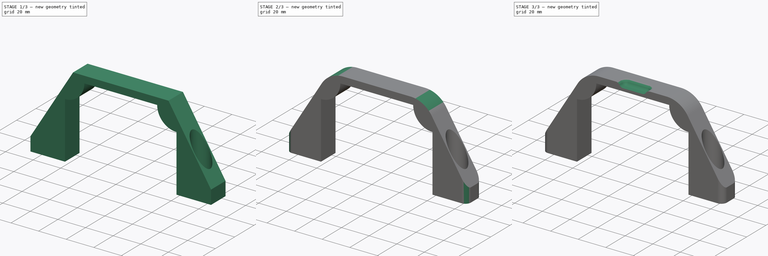
[diagram: build sequence overview — one tinted view per stage of 3, left to right]
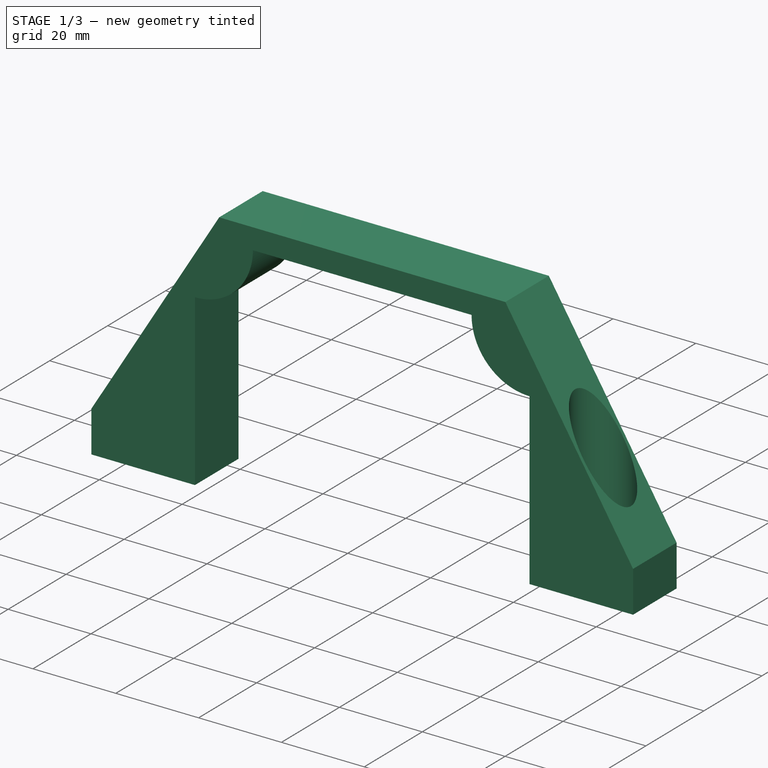
[diagram: stage 1 of 3 — iso view after this stage's code; geometry added in this stage tinted green]
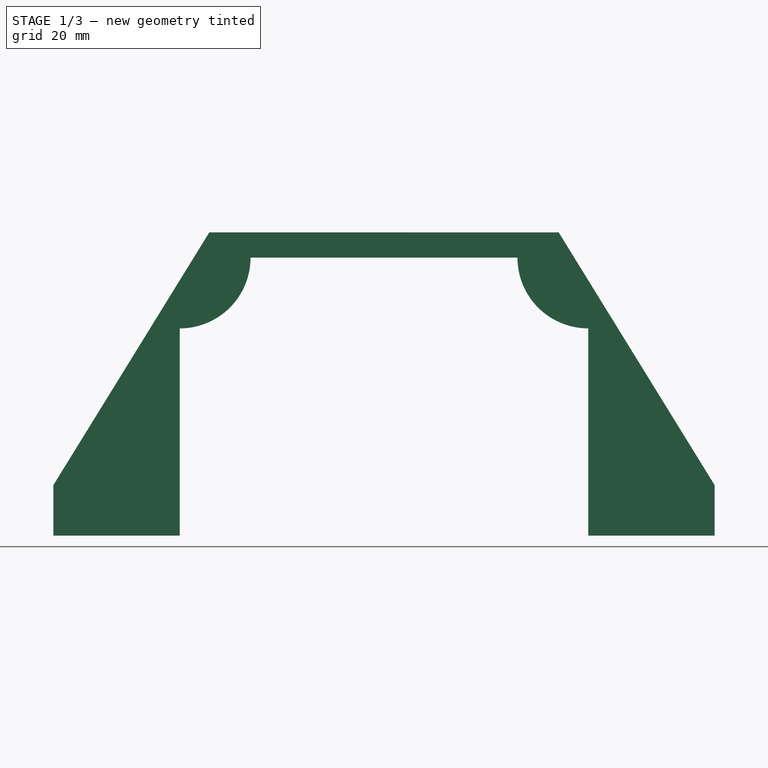
[diagram: stage 1 of 3 — front view after this stage's code; geometry added in this stage tinted green]
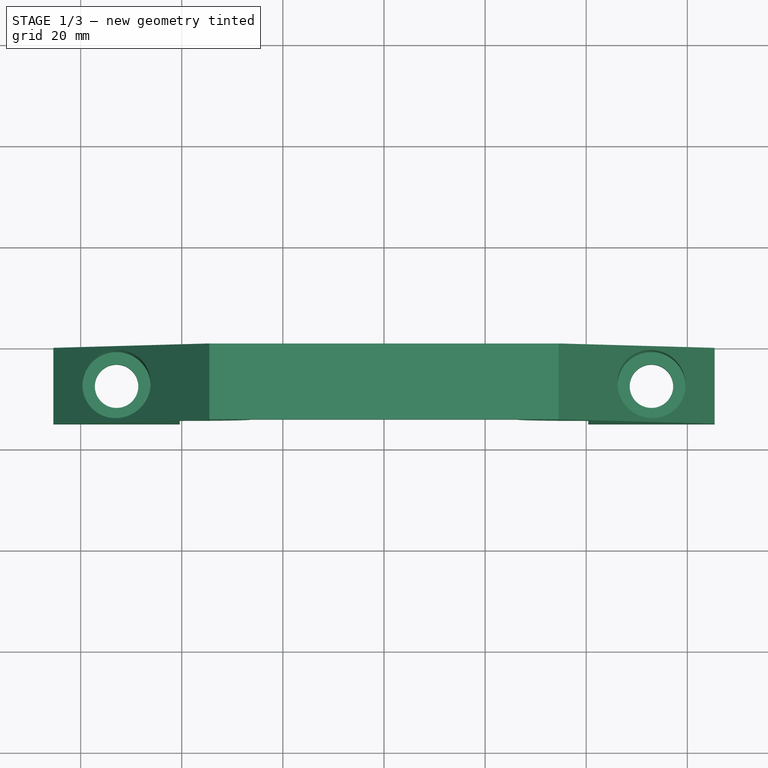
[diagram: stage 1 of 3 — top view after this stage's code; geometry added in this stage tinted green]
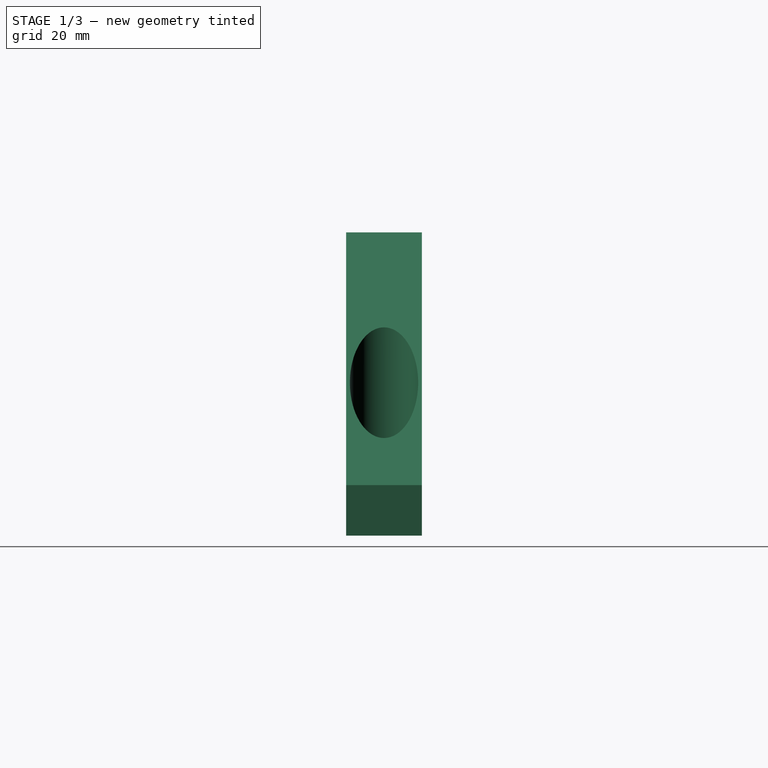
[diagram: stage 1 of 3 — right view after this stage's code; geometry added in this stage tinted green]
FCSTD DOCUMENT  (FreeCAD 1.0R39109 (Git))
Label: sway_motor_mount_top
License: All rights reserved
LicenseURL: https://en.wikipedia.org/wiki/All_rights_reserved
objects: Sketcher::SketchObject×4, PartDesign::Pocket×3, PartDesign::Fillet×3, PartDesign::Pad×1, PartDesign::Groove×1, PartDesign::Body×1
note: 33 computed .brp shape members not serialized (recipe doc carries the construction recipe); baked Part::Feature solids carry a one-line shape summary decoded from their .brp

FEATURE [Sketcher::SketchObject] Sketch
  ArcFitTolerance = 1e-06
  AttachmentSupport = -> [XZ_Plane]
  FullyConstrained = true
  MakeInternals = false
  MapMode = 5
  Placement = pos=(0,0,0) rot=(1,0,0;1.5708rad)
  sketch-geometry (31):
    g0: LineSegment [constr] StartX=-66.2 StartY=5 StartZ=0 EndX=-66.2 EndY=-5 EndZ=0
    g1: LineSegment [constr] StartX=-66.2 StartY=-5 StartZ=0 EndX=-40 EndY=-5 EndZ=0
    g2: LineSegment [constr] StartX=-40 StartY=-5 StartZ=0 EndX=-40 EndY=5 EndZ=0
    g3: LineSegment [constr] StartX=-40 StartY=5 StartZ=0 EndX=-66.2 EndY=5 EndZ=0
    g4: LineSegment [constr] StartX=40 StartY=5 StartZ=0 EndX=40 EndY=-5 EndZ=0
    g5: LineSegment [constr] StartX=40 StartY=-5 StartZ=0 EndX=66.2 EndY=-5 EndZ=0
    g6: LineSegment [constr] StartX=66.2 StartY=-5 StartZ=0 EndX=66.2 EndY=5 EndZ=0
    g7: LineSegment [constr] StartX=66.2 StartY=5 StartZ=0 EndX=40 EndY=5 EndZ=0
    g8: LineSegment [constr] StartX=-40 StartY=-5 StartZ=0 EndX=0 EndY=0 EndZ=0
    g9: LineSegment [constr] StartX=0 StartY=0 StartZ=0 EndX=40 EndY=-5 EndZ=0
    g10: LineSegment [constr] StartX=-40 StartY=60 StartZ=0 EndX=-40 EndY=-20 EndZ=0
    g11: LineSegment [constr] StartX=-40 StartY=-20 StartZ=0 EndX=40 EndY=-20 EndZ=0
    g12: LineSegment [constr] StartX=40 StartY=-20 StartZ=0 EndX=40 EndY=60 EndZ=0
    g13: LineSegment [constr] StartX=40 StartY=60 StartZ=0 EndX=-40 EndY=60 EndZ=0
    g14: ArcOfCircle [constr] CenterX=-40 CenterY=-20 CenterZ=0 NormalX=0 NormalY=0 NormalZ=1 AngleXU=0 Radius=14 StartAngle=0 EndAngle=1.5708
    g15: ArcOfCircle [constr] CenterX=-40 CenterY=60 CenterZ=0 NormalX=0 NormalY=0 NormalZ=1 AngleXU=0 Radius=14 StartAngle=4.71239 EndAngle=6.28319
    g16: ArcOfCircle [constr] CenterX=40 CenterY=-20 CenterZ=0 NormalX=0 NormalY=0 NormalZ=1 AngleXU=0 Radius=14 StartAngle=1.5708 EndAngle=3.14159
    g17: ArcOfCircle [constr] CenterX=40 CenterY=60 CenterZ=0 NormalX=0 NormalY=0 NormalZ=1 AngleXU=0 Radius=14 StartAngle=3.14159 EndAngle=4.71239
    g18: ArcOfCircle CenterX=-40.4 CenterY=60.4 CenterZ=0 NormalX=0 NormalY=0 NormalZ=1 AngleXU=0 Radius=14 StartAngle=4.71239 EndAngle=6.28319
    g19: ArcOfCircle CenterX=40.4 CenterY=60.4 CenterZ=0 NormalX=0 NormalY=0 NormalZ=1 AngleXU=0 Radius=14 StartAngle=3.14159 EndAngle=4.71239
    g20: LineSegment StartX=-40.4 StartY=5.4 StartZ=0 EndX=-65.4 EndY=5.4 EndZ=0
    g21: LineSegment StartX=-65.4 StartY=5.4 StartZ=0 EndX=-65.4 EndY=15.4 EndZ=0
    g22: LineSegment StartX=-65.4 StartY=15.4 StartZ=0 EndX=-34.5532 EndY=65.4 EndZ=0
    g23: LineSegment StartX=-34.5532 StartY=65.4 StartZ=0 EndX=34.5532 EndY=65.4 EndZ=0
    g24: LineSegment StartX=34.5532 StartY=65.4 StartZ=0 EndX=65.4 EndY=15.4 EndZ=0
    g25: LineSegment StartX=65.4 StartY=15.4 StartZ=0 EndX=65.4 EndY=5.4 EndZ=0
    g26: LineSegment StartX=65.4 StartY=5.4 StartZ=0 EndX=40.4 EndY=5.4 EndZ=0
    g27: LineSegment StartX=40.4 StartY=5.4 StartZ=0 EndX=40.4 EndY=46.4 EndZ=0
    g28: LineSegment StartX=-26.4 StartY=60.4 StartZ=0 EndX=26.4 EndY=60.4 EndZ=0
    g29: LineSegment StartX=-40.4 StartY=46.4 StartZ=0 EndX=-40.4 EndY=5.4 EndZ=0
    g30: LineSegment [constr] StartX=-44.6553 StartY=49.0253 StartZ=0 EndX=-40.4 EndY=46.4 EndZ=0
  constraints (97):
    c: Coincident(g0,g1)
    c: Coincident(g1,g2)
    c: Coincident(g2,g3)
    c: Coincident(g3,g0)
    c: Vertical(g0)
    c: Vertical(g2)
    c: Horizontal(g1)
    c: Horizontal(g3)
    c: Coincident(g4,g5)
    c: Coincident(g5,g6)
    c: Coincident(g6,g7)
    c: Coincident(g7,g4)
    c: Vertical(g4)
    c: Vertical(g6)
    c: Horizontal(g5)
    c: Horizontal(g7)
    c: Equal(g2,g4)
    c: DistanceY(g0,g0) = 10
    c: DistanceX(g2,g4) = 80
    c: DistanceY(g2,g4) = 0
    c: Coincident(g8,g1)
    c: Coincident(g8,g-1)
    c: Coincident(g9,g8)
    c: Coincident(g9,g4)
    c: Equal(g9,g8)
    c: Coincident(g10,g11)
    c: Coincident(g11,g12)
    c: Coincident(g12,g13)
    c: Coincident(g13,g10)
    c: Vertical(g10)
    c: Vertical(g12)
    c: Horizontal(g11)
    c: Horizontal(g13)
    c: PointOnObject(g2,g10)
    c: PointOnObject(g4,g12)
    c: Equal(g13,g10)
    c: DistanceY(g2,g10) = 55
    c: DistanceY(g2) = 5
    c: Coincident(g14,g10)
    c: PointOnObject(g14,g10)
    c: PointOnObject(g14,g11)
    c: Diameter(g14) = 28
    c: Coincident(g15,g10)
    c: PointOnObject(g15,g13)
    c: PointOnObject(g15,g10)
    c: Coincident(g16,g11)
    c: PointOnObject(g16,g11)
    c: PointOnObject(g16,g12)
    c: Coincident(g17,g12)
    c: PointOnObject(g17,g13)
    c: PointOnObject(g17,g12)
    c: Equal(g14,g16)
    c: Equal(g16,g17)
    c: Equal(g17,g15)
    c: Horizontal(g20)
    c: Coincident(g20,g21)
    c: Vertical(g21)
    c: Coincident(g21,g22)
    c: Coincident(g22,g23)
    c: Horizontal(g23)
    c: Coincident(g23,g24)
    c: Coincident(g24,g25)
    c: Vertical(g25)
    c: Coincident(g25,g26)
    c: Horizontal(g26)
    c: Coincident(g26,g27)
    c: Coincident(g27,g19)
    c: Vertical(g27)
    c: Coincident(g28,g18)
    c: Coincident(g28,g19)
    c: Horizontal(g28)
    c: Coincident(g29,g18)
    c: Coincident(g29,g20)
    c: Vertical(g29)
    c: DistanceY(g0,g20) = 0.4
    c: DistanceX(g20,g2) = 0.4
    c: Perpendicular(g18,g29)
    c: DistanceY(g15,g18) = 0.4
    c: Perpendicular(g18,g28)
    c: DistanceY(g18,g22) = 5
    c: DistanceY(g20,g21) = 10
    c: Equal(g21,g25)
    c: Equal(g22,g24)
    c: DistanceX(g4,g26) = 0.4
    c: DistanceY(g4,g26) = 0.4
    c: Equal(g27,g29)
    c: Perpendicular(g19,g27)
    c: Perpendicular(g19,g28)
    c: DistanceY(g15,g18) = 0.4
    c: Equal(g3,g7)
    c: DistanceX(g1,g1) = 26.2
    c: DistanceX(g20,g20) = 25
    c: Equal(g26,g20)
    c: PointOnObject(g30,g22)
    c: Coincident(g30,g18)
    c: Perpendicular(g22,g30)
    c: Distance(g30) = 5
FEATURE [PartDesign::Pad] Pad
  Direction = (0,-1,2e-16)
  Length = 15
  Length2 = 10
  Placement = pos=(0,0,0) rot=(1,0,0;1.5708rad)
  Profile = -> Sketch
  ReferenceAxis = -> Sketch [N_Axis]
  Refine = true
  Suppressed = false
  Type = 0
FEATURE [Sketcher::SketchObject] Sketch001
  ArcFitTolerance = 1e-06
  AttachmentSupport = -> [Pad]
  FullyConstrained = true
  MakeInternals = false
  MapMode = 5
  Placement = pos=(0,2.4e-15,5.4) rot=(1,0,0;3.14159rad)
  sketch-geometry (14):
    g0: LineSegment [constr] StartX=-65.4 StartY=1.8e-15 StartZ=0 EndX=-40.4 EndY=1.8e-15 EndZ=0
    g1: LineSegment [constr] StartX=-40.4 StartY=1.8e-15 StartZ=0 EndX=-40.4 EndY=15 EndZ=0
    g2: LineSegment [constr] StartX=-40.4 StartY=15 StartZ=0 EndX=-65.4 EndY=15 EndZ=0
    g3: LineSegment [constr] StartX=-65.4 StartY=15 StartZ=0 EndX=-65.4 EndY=1.8e-15 EndZ=0
    g4: LineSegment [constr] StartX=65.4 StartY=0 StartZ=0 EndX=65.4 EndY=15 EndZ=0
    g5: LineSegment [constr] StartX=65.4 StartY=15 StartZ=0 EndX=40.4 EndY=15 EndZ=0
    g6: LineSegment [constr] StartX=40.4 StartY=15 StartZ=0 EndX=40.4 EndY=0 EndZ=0
    g7: LineSegment [constr] StartX=40.4 StartY=0 StartZ=0 EndX=65.4 EndY=0 EndZ=0
    g8: LineSegment [constr] StartX=-65.4 StartY=15 StartZ=0 EndX=-40.4 EndY=3.6e-15 EndZ=0
    g9: LineSegment [constr] StartX=-65.4 StartY=1.8e-15 StartZ=0 EndX=-40.4 EndY=15 EndZ=0
    g10: LineSegment [constr] StartX=40.4 StartY=15 StartZ=0 EndX=65.4 EndY=3.6e-15 EndZ=0
    g11: LineSegment [constr] StartX=40.4 StartY=0 StartZ=0 EndX=65.4 EndY=15 EndZ=0
    g12: Circle CenterX=-52.9 CenterY=7.5 CenterZ=0 NormalX=0 NormalY=0 NormalZ=1 AngleXU=0 Radius=4.3
    g13: Circle CenterX=52.9 CenterY=7.5 CenterZ=0 NormalX=0 NormalY=0 NormalZ=1 AngleXU=0 Radius=4.3
  constraints (36):
    c: Coincident(g0,g1)
    c: Coincident(g1,g2)
    c: Coincident(g2,g3)
    c: Coincident(g3,g0)
    c: Horizontal(g0)
    c: Horizontal(g2)
    c: Vertical(g1)
    c: Vertical(g3)
    c: Distance(g1,g3) = 25
    c: Distance(g0,g2) = 15
    c: PointOnObject(g0,g-1)
    c: DistanceX(g0) = -40.4
    c: Coincident(g4,g5)
    c: Coincident(g5,g6)
    c: Coincident(g6,g7)
    c: Coincident(g7,g4)
    c: Vertical(g4)
    c: Vertical(g6)
    c: Horizontal(g5)
    c: Horizontal(g7)
    c: PointOnObject(g4,g-1)
    c: DistanceX(g6) = 40.4
    c: Coincident(g8,g2)
    c: Coincident(g8,g0)
    c: Coincident(g9,g0)
    c: Coincident(g9,g1)
    c: Coincident(g10,g5)
    c: Coincident(g10,g4)
    c: Coincident(g11,g6)
    c: Coincident(g11,g4)
    c: Diameter(g12) = 8.6
    c: Symmetric(g8,g8,g12)
    c: Symmetric(g11,g11,g13)
    c: Equal(g2,g5)
    c: Equal(g3,g4)
    c: Equal(g12,g13)
FEATURE [PartDesign::Pocket] Pocket
  BaseFeature = -> Pad
  Direction = (0,0,1)
  Length = 5
  Length2 = 5
  Placement = pos=(0,0,0) rot=(1,0,0;1.5708rad)
  Profile = -> Sketch001
  ReferenceAxis = -> Sketch001 [N_Axis]
  Refine = true
  Suppressed = false
  Type = 1
FEATURE [Sketcher::SketchObject] Sketch002
  ArcFitTolerance = 1e-06
  AttachmentOffset = pos=(0,0,-5) rot=(0,0,1;0rad)
  AttachmentSupport = -> [Pocket]
  FullyConstrained = true
  MakeInternals = false
  MapMode = 5
  Placement = pos=(0,2.4e-15,10.4) rot=(1,0,0;3.14159rad)
  expr: Constraints[11] = Sketch001.Constraints[11]
  expr: Constraints[21] = Sketch001.Constraints[21]
  expr: Constraints[30] = Sketch001.Constraints[30]
  expr: Constraints[8] = Sketch001.Constraints[8]
  expr: Constraints[9] = Sketch001.Constraints[9]
  sketch-geometry (16):
    g0: LineSegment [constr] StartX=-65.4 StartY=0 StartZ=0 EndX=-40.4 EndY=0 EndZ=0
    g1: LineSegment [constr] StartX=-40.4 StartY=0 StartZ=0 EndX=-40.4 EndY=15 EndZ=0
    g2: LineSegment [constr] StartX=-40.4 StartY=15 StartZ=0 EndX=-65.4 EndY=15 EndZ=0
    g3: LineSegment [constr] StartX=-65.4 StartY=15 StartZ=0 EndX=-65.4 EndY=0 EndZ=0
    g4: LineSegment [constr] StartX=65.4 StartY=0 StartZ=0 EndX=65.4 EndY=15 EndZ=0
    g5: LineSegment [constr] StartX=65.4 StartY=15 StartZ=0 EndX=40.4 EndY=15 EndZ=0
    g6: LineSegment [constr] StartX=40.4 StartY=15 StartZ=0 EndX=40.4 EndY=0 EndZ=0
    g7: LineSegment [constr] StartX=40.4 StartY=0 StartZ=0 EndX=65.4 EndY=0 EndZ=0
    g8: LineSegment [constr] StartX=-65.4 StartY=15 StartZ=0 EndX=-40.4 EndY=3.6e-15 EndZ=0
    g9: LineSegment [constr] StartX=-65.4 StartY=0 StartZ=0 EndX=-40.4 EndY=15 EndZ=0
    g10: LineSegment [constr] StartX=40.4 StartY=15 StartZ=0 EndX=65.4 EndY=3.6e-15 EndZ=0
    g11: LineSegment [constr] StartX=40.4 StartY=0 StartZ=0 EndX=65.4 EndY=15 EndZ=0
    g12: Circle [constr] CenterX=-52.9 CenterY=7.5 CenterZ=0 NormalX=0 NormalY=0 NormalZ=1 AngleXU=0 Radius=4.3
    g13: Circle [constr] CenterX=52.9 CenterY=7.5 CenterZ=0 NormalX=0 NormalY=0 NormalZ=1 AngleXU=0 Radius=4.3
    g14: Circle CenterX=-52.9 CenterY=7.5 CenterZ=0 NormalX=0 NormalY=0 NormalZ=1 AngleXU=0 Radius=6.75
    g15: Circle CenterX=52.9 CenterY=7.5 CenterZ=0 NormalX=0 NormalY=0 NormalZ=1 AngleXU=0 Radius=6.75
  constraints (40):
    c: Coincident(g0,g1)
    c: Coincident(g1,g2)
    c: Coincident(g2,g3)
    c: Coincident(g3,g0)
    c: Horizontal(g0)
    c: Horizontal(g2)
    c: Vertical(g1)
    c: Vertical(g3)
    c: Distance(g1,g3) = 25
    c: Distance(g0,g2) = 15
    c: PointOnObject(g0,g-1)
    c: DistanceX(g0) = -40.4
    c: Coincident(g4,g5)
    c: Coincident(g5,g6)
    c: Coincident(g6,g7)
    c: Coincident(g7,g4)
    c: Vertical(g4)
    c: Vertical(g6)
    c: Horizontal(g5)
    c: Horizontal(g7)
    c: PointOnObject(g4,g-1)
    c: DistanceX(g6) = 40.4
    c: Coincident(g8,g2)
    c: Coincident(g8,g0)
    c: Coincident(g9,g0)
    c: Coincident(g9,g1)
    c: Coincident(g10,g5)
    c: Coincident(g10,g4)
    c: Coincident(g11,g6)
    c: Coincident(g11,g4)
    c: Diameter(g12) = 8.6
    c: Symmetric(g8,g8,g12)
    c: Symmetric(g11,g11,g13)
    c: Equal(g13,g12)
    c: Coincident(g14,g12)
    c: Coincident(g15,g13)
    c: Equal(g14,g15)
    c: Diameter(g14) = 13.5
    c: Equal(g4,g3)
    c: Equal(g5,g2)
FEATURE [PartDesign::Pocket] Pocket001
  BaseFeature = -> Pocket
  Direction = (0,0,1)
  Length = 5
  Length2 = 5
  Placement = pos=(0,0,0) rot=(1,0,0;1.5708rad)
  Profile = -> Sketch002
  ReferenceAxis = -> Sketch002 [N_Axis]
  Refine = true
  Suppressed = false
  Type = 1
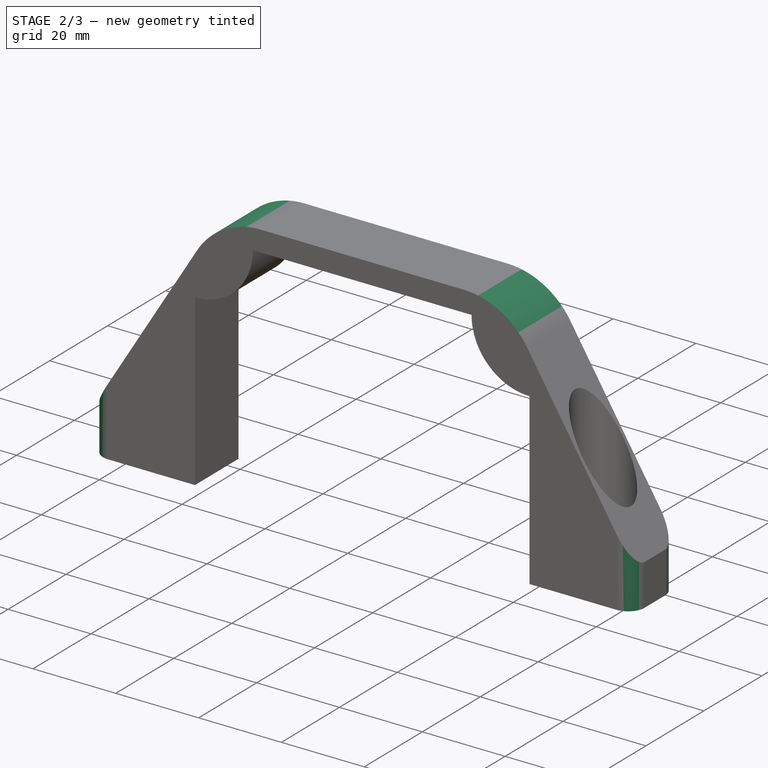
[diagram: stage 2 of 3 — iso view after this stage's code; geometry added in this stage tinted green]
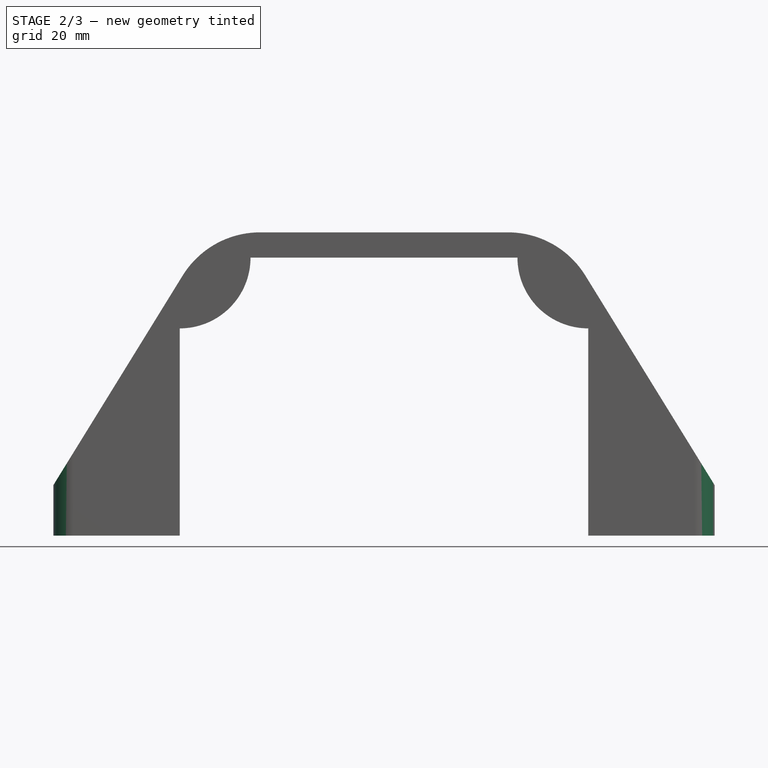
[diagram: stage 2 of 3 — front view after this stage's code; geometry added in this stage tinted green]
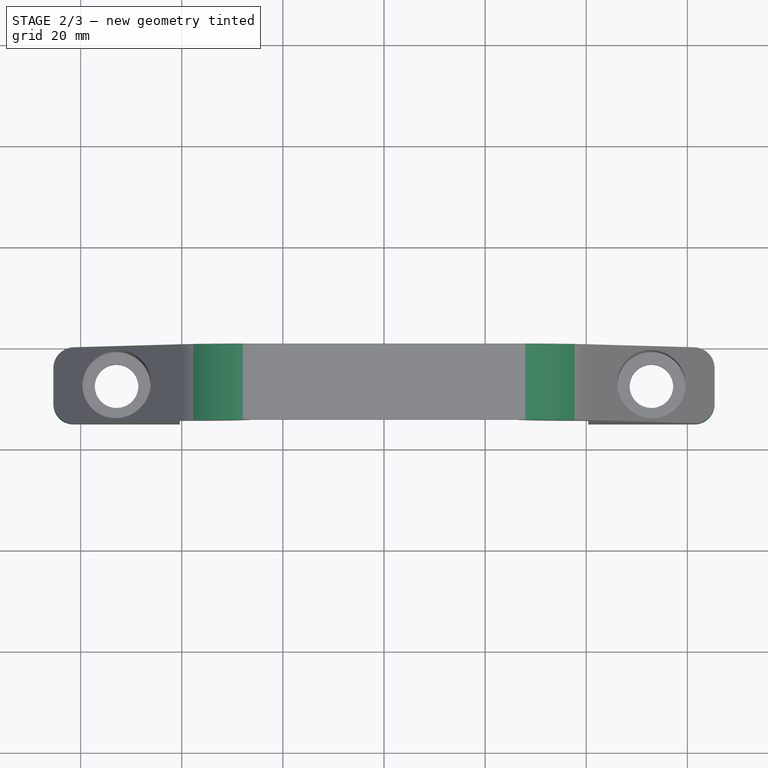
[diagram: stage 2 of 3 — top view after this stage's code; geometry added in this stage tinted green]
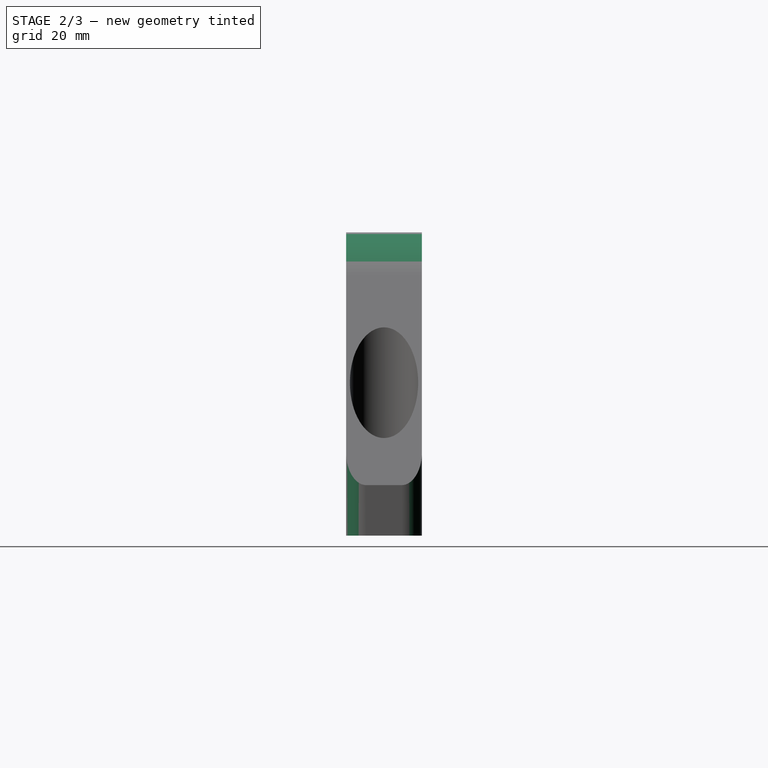
[diagram: stage 2 of 3 — right view after this stage's code; geometry added in this stage tinted green]
FEATURE [PartDesign::Fillet] Fillet
  Base = -> Pocket001 [Edge27,Edge18,Edge23,Edge14]
  BaseFeature = -> Pocket001
  Placement = pos=(0,0,0) rot=(1,0,0;1.5708rad)
  Radius = 4
  Refine = true
  SupportTransform = false
  Suppressed = false
  UseAllEdges = false
FEATURE [PartDesign::Fillet] Fillet001
  Base = -> Fillet [Edge30,Edge23]
  BaseFeature = -> Fillet
  Placement = pos=(0,0,0) rot=(1,0,0;1.5708rad)
  Radius = 18
  Refine = true
  SupportTransform = false
  Suppressed = false
  UseAllEdges = false
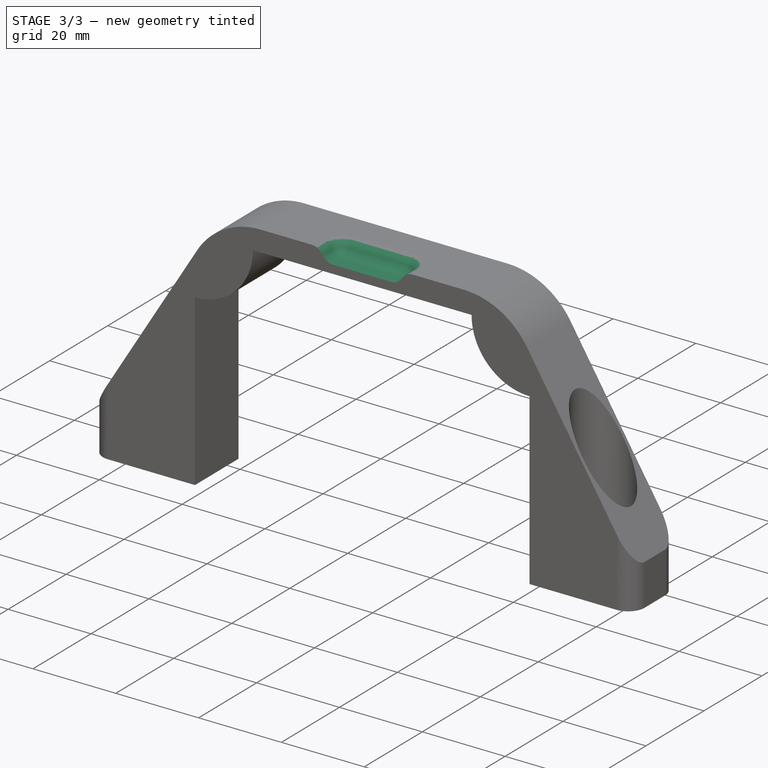
[diagram: stage 3 of 3 — iso view after this stage's code; geometry added in this stage tinted green]
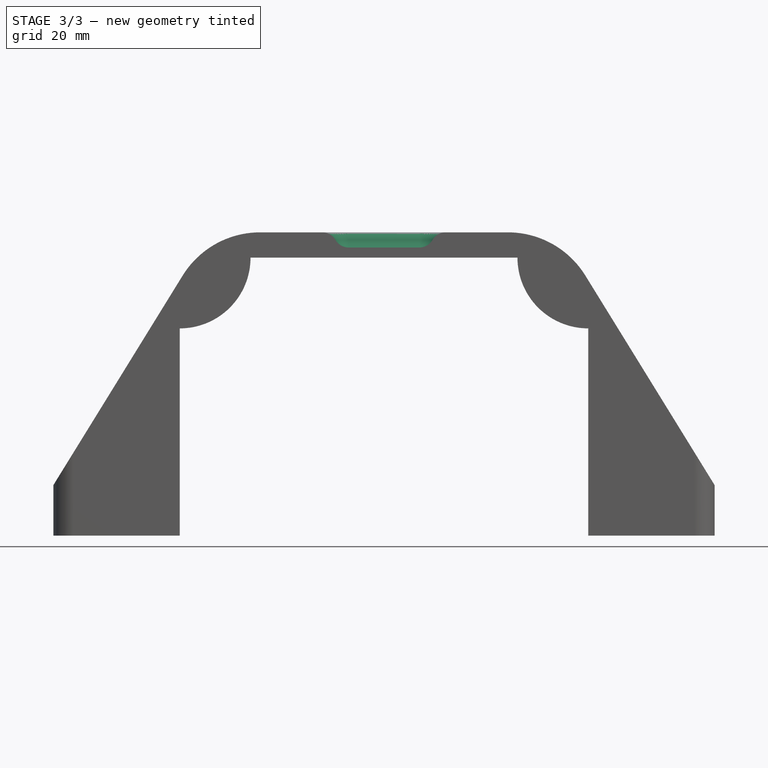
[diagram: stage 3 of 3 — front view after this stage's code; geometry added in this stage tinted green]
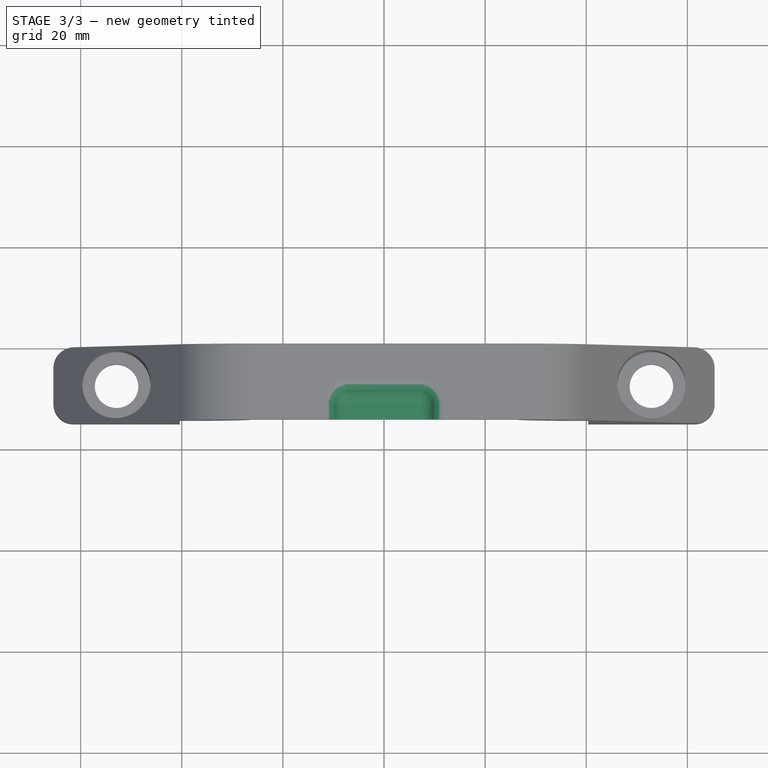
[diagram: stage 3 of 3 — top view after this stage's code; geometry added in this stage tinted green]
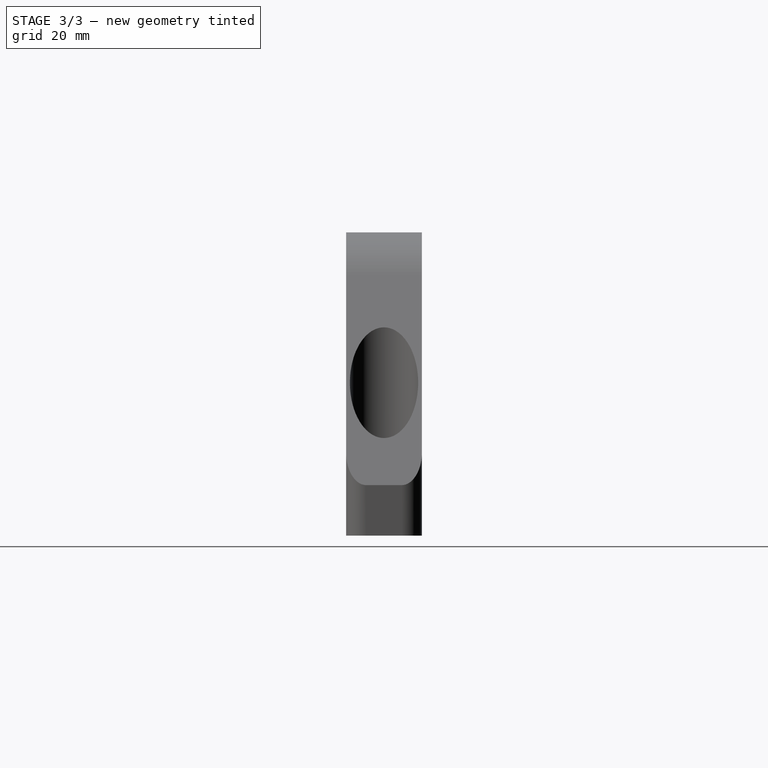
[diagram: stage 3 of 3 — right view after this stage's code; geometry added in this stage tinted green]
FEATURE [Sketcher::SketchObject] Sketch003
  ArcFitTolerance = 1e-06
  AttachmentSupport = -> [Fillet001]
  FullyConstrained = true
  MakeInternals = false
  MapMode = 5
  Placement = pos=(0,-15,0) rot=(1,0,0;1.5708rad)
  sketch-geometry (4):
    g0: ArcOfCircle CenterX=-7 CenterY=65.4 CenterZ=0 NormalX=0 NormalY=0 NormalZ=1 AngleXU=0 Radius=3 StartAngle=3.14159 EndAngle=4.71239
    g1: ArcOfCircle CenterX=7 CenterY=65.4 CenterZ=0 NormalX=0 NormalY=0 NormalZ=1 AngleXU=0 Radius=3 StartAngle=4.71239 EndAngle=6.28319
    g2: LineSegment StartX=-7 StartY=62.4 StartZ=0 EndX=7 EndY=62.4 EndZ=0
    g3: LineSegment StartX=-10 StartY=65.4 StartZ=0 EndX=10 EndY=65.4 EndZ=0
  constraints (12):
    c: Coincident(g3,g0)
    c: Coincident(g3,g1)
    c: Horizontal(g3)
    c: Horizontal(g2)
    c: PointOnObject(g1,g3)
    c: PointOnObject(g0,g3)
    c: Tangent(g2,g1) = -1.5708
    c: Tangent(g2,g0) = -1.5708
    c: DistanceX(g3,g3) = 20
    c: DistanceX(g0) = -10
    c: DistanceY(g0) = 65.4
    c: DistanceY(g0,g0) = 3
FEATURE [PartDesign::Pocket] Pocket002
  BaseFeature = -> Fillet001
  Direction = (0,1,-2e-16)
  Length = 3
  Length2 = 5
  Placement = pos=(0,0,0) rot=(1,0,0;1.5708rad)
  Profile = -> Sketch003
  ReferenceAxis = -> Sketch003 [N_Axis]
  Refine = true
  Suppressed = false
  Type = 0
FEATURE [PartDesign::Groove] Groove
  Angle = 90
  Angle2 = 60
  Axis = (1,0,0)
  Base = (-10,-12,65.4)
  BaseFeature = -> Pocket002
  Placement = pos=(0,0,0) rot=(1,0,0;1.5708rad)
  Profile = -> Pocket002 [Face21]
  ReferenceAxis = -> Pocket002 [Edge27]
  Refine = true
  Suppressed = false
  Type = 0
FEATURE [PartDesign::Fillet] Fillet002
  Base = -> Groove [Edge28]
  BaseFeature = -> Groove
  Placement = pos=(0,0,0) rot=(1,0,0;1.5708rad)
  Radius = 3
  Refine = true
  SupportTransform = false
  Suppressed = false
  UseAllEdges = false
FEATURE [PartDesign::Body] Body  label="sway_motor_mount_top"
  AllowCompound = false
  Group = -> [Sketch,Pad,Sketch001,Pocket,Sketch002,Pocket001,Fillet,Fillet001,Sketch003,Pocket002,Groove,Fillet002]
  Origin = -> Origin
  Tip = -> Fillet002
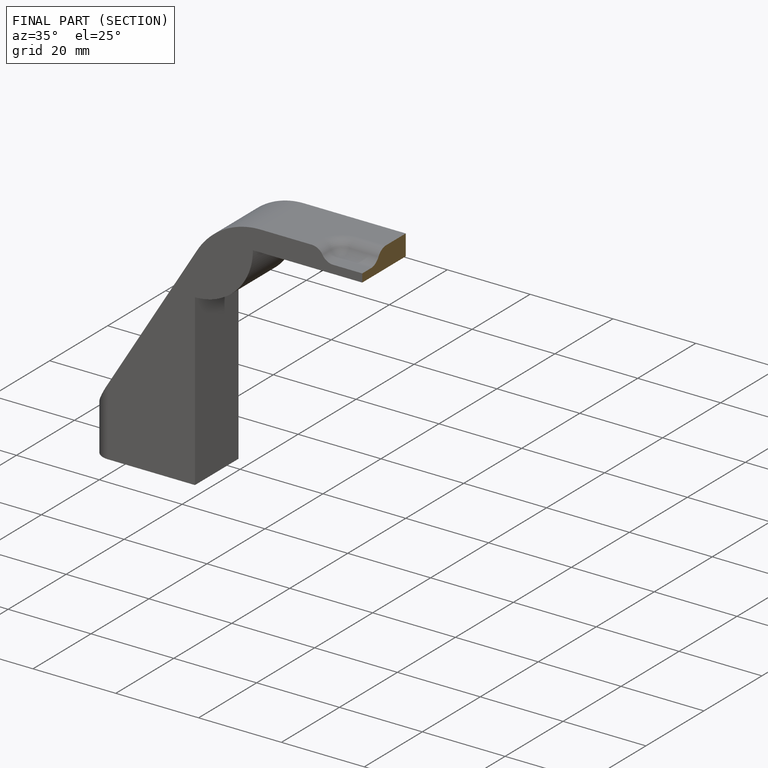
[diagram: finished part — half-section view (interior)]
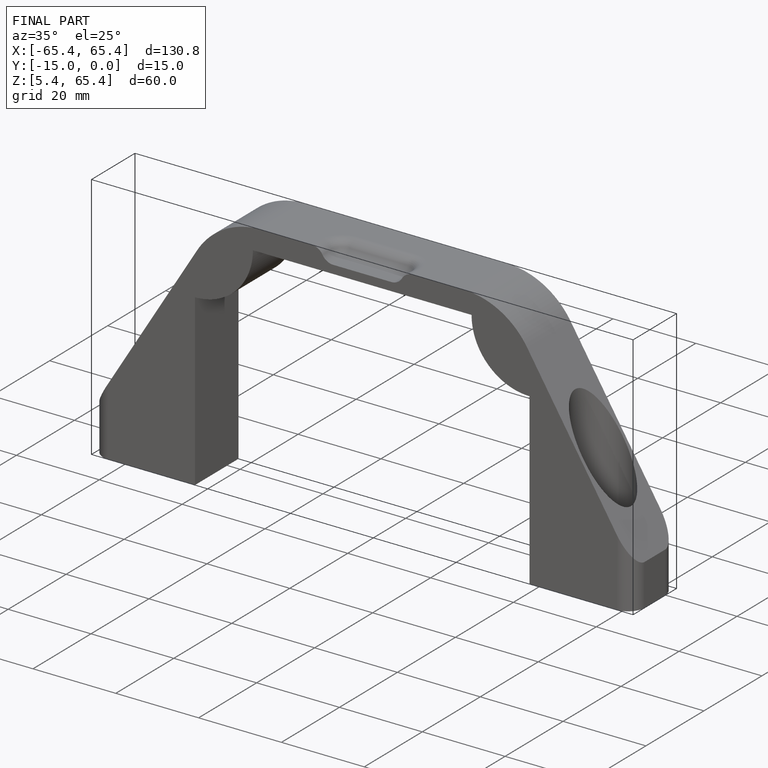
[diagram: finished part — iso view with bounding-box wireframe]
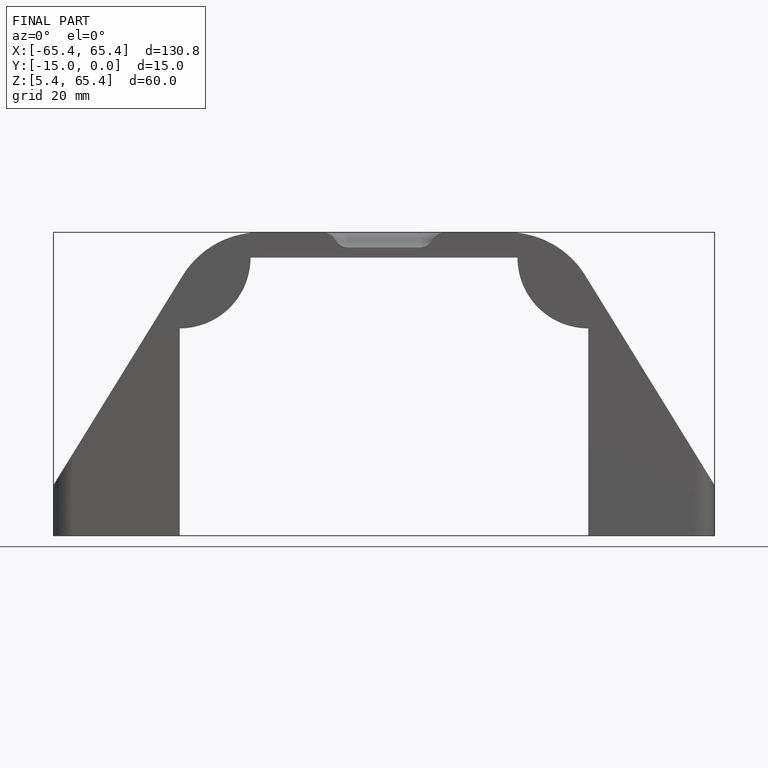
[diagram: finished part — front view with bounding-box wireframe]
